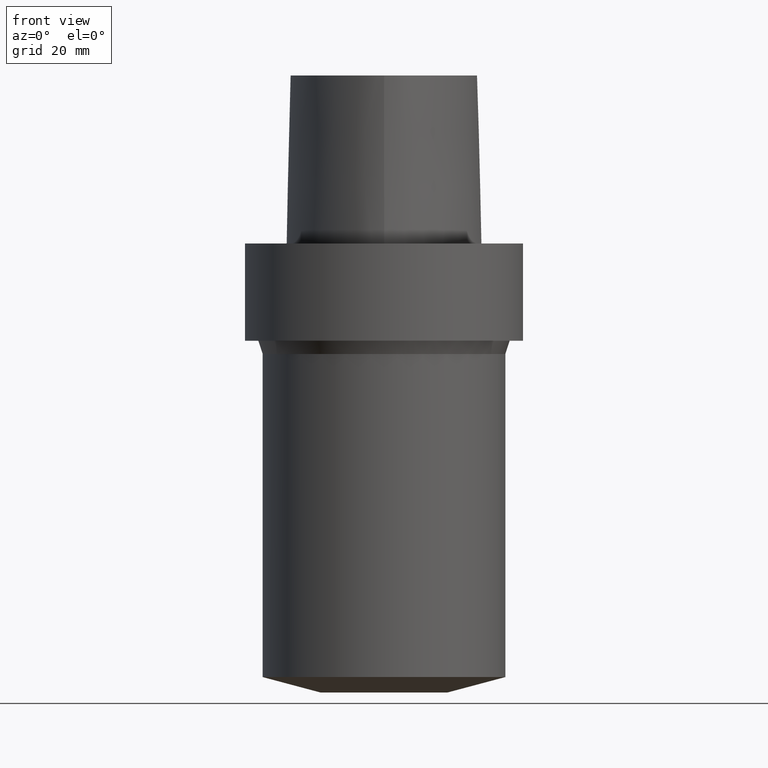
[diagram: clean part render]
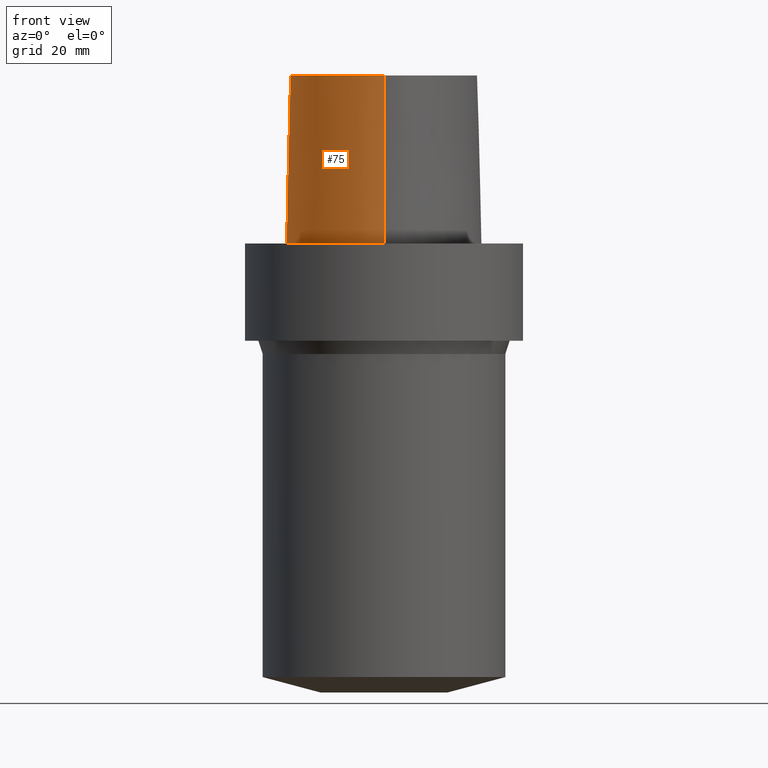
[diagram: same view with one face highlighted and labeled with its STEP entity id]
A machine part, front view. The second image highlights one B-rep face of the part: STEP entity #75.
In plain terms, the highlighted face is a freeform B-spline surface patch.
Its self-contained STEP definition (entity closure, byte-faithful):
#64=EDGE_CURVE('Unnamed[1]',#152,#153,#154,.T.);
#75=ADVANCED_FACE('Unnamed[1]',(#170),#171,.T.);
#91=EDGE_CURVE('Unnamed[1]',#156,#152,#192,.T.);
#97=EDGE_CURVE('Unnamed[1]',#156,#181,#200,.T.);
#105=EDGE_CURVE('Unnamed[1]',#153,#181,#211,.T.);
#152=VERTEX_POINT('',#256);
#153=VERTEX_POINT('',#257);
#154=LINE('',#258,#259);
#156=VERTEX_POINT('',#262);
#170=FACE_OUTER_BOUND('',#280,.T.);
#171=B_SPLINE_SURFACE_WITH_KNOTS('',3,3,((#281,#282,#283,#284),(#285,#286,#287,#288),(#289,#290,#291,#292),(#293,#294,#295,#296),(#297,#298,#299,#300),(#301,#302,#303,#304),(#305,#306,#307,#308),(#309,#310,#311,#312),(#313,#314,#315,#316),(#317,#318,#319,#320),(#321,#322,#323,#324),(#325,#326,#327,#328),(#329,#330,#331,#332),(#333,#334,#335,#336),(#337,#338,#339,#340),(#341,#342,#343,#344),(#345,#346,#347,#348),(#349,#350,#351,#352)),.UNSPECIFIED.,.F.,.F.,.F.,(4,1,1,1,1,1,1,1,1,2,1,1,1,1,4),(4,4),(-6.6151339308743,-6.20168806019465,-5.78824218951501,-5.37479631883537,-4.96135044815572,-4.13445870679644,-3.30756696543715,-2.89412109475751,-2.48067522407786,-2.06722935339822,-1.65378348271857,-1.24033761203893,-0.826891741359287,-0.413445870679644,0.0),(-3.8,0.0),.UNSPECIFIED.);
#181=VERTEX_POINT('',#364);
#192=B_SPLINE_CURVE_WITH_KNOTS('',3,(#394,#395,#396,#397,#398,#399,#400,#401,#402,#403,#404,#405,#406,#407,#408,#409),.UNSPECIFIED.,.F.,.F.,(4,1,1,1,1,1,1,1,1,1,1,1,1,4),(0.0,0.447924670568964,0.9388024242536,1.50591409090711,2.07314340012323,2.72424957442464,3.2253501842849,3.80982102049476,4.34867996267067,4.85900173381144,5.37972031856977,6.03459825488646,6.61113557741484,6.61513393087395),.UNSPECIFIED.);
#200=LINE('',#420,#421);
#211=B_SPLINE_CURVE_WITH_KNOTS('',3,(#435,#436,#437,#438,#439,#440,#441,#442,#443,#444,#445,#446,#447,#448,#449,#450,#451,#452),.UNSPECIFIED.,.F.,.F.,(4,1,1,1,1,1,1,1,1,2,1,1,1,1,4),(-6.6151339308743,-6.20168806019465,-5.78824218951501,-5.37479631883537,-4.96135044815572,-4.13445870679644,-3.30756696543715,-2.89412109475751,-2.48067522407786,-2.06722935339822,-1.65378348271857,-1.24033761203893,-0.826891741359287,-0.413445870679644,0.0),.UNSPECIFIED.);
#256=CARTESIAN_POINT('',(0.038736923393866,-22.5191997536361,38.0));
#257=CARTESIAN_POINT('',(0.04359356758149,-23.4691235068931,7.78075697532443E-032));
#258=CARTESIAN_POINT('',(0.038736923393866,-22.5191997536361,38.0));
#259=VECTOR('',#579,38.0118715498723);
#262=CARTESIAN_POINT('',(-0.001218547003662,19.7276821925089,38.0));
#280=EDGE_LOOP('',(#594,#595,#596,#597));
#281=CARTESIAN_POINT('',(0.038736923393866,-22.5191997536361,38.0));
#282=CARTESIAN_POINT('',(0.04035580478973,-22.8358410047159,25.3333333333066));
#283=CARTESIAN_POINT('',(0.041974686185626,-23.1524822558133,12.6666666666934));
#284=CARTESIAN_POINT('',(0.04359356758149,-23.4691235068931,7.78075697532443E-032));
#285=CARTESIAN_POINT('',(-1.33786123484754,-22.5261650259856,38.0));
#286=CARTESIAN_POINT('',(-1.38240731367927,-22.8430399310626,25.3333333333066));
#287=CARTESIAN_POINT('',(-1.42695339249092,-23.1599147815484,12.6666666666934));
#288=CARTESIAN_POINT('',(-1.4714994713963,-23.4767895315797,2.46519032881566E-032));
#289=CARTESIAN_POINT('',(-4.08909358431842,-21.9268839879558,38.0));
#290=CARTESIAN_POINT('',(-4.20580731135515,-22.2249725500078,25.3333333333066));
#291=CARTESIAN_POINT('',(-4.32252104640446,-22.5230611651922,12.6666666666934));
#292=CARTESIAN_POINT('',(-4.43923476371401,-22.821149804767,-4.93038065763132E-032));
#293=CARTESIAN_POINT('',(-7.8333083619947,-19.9973514861616,38.0));
#294=CARTESIAN_POINT('',(-8.00568301809614,-20.2649260859405,25.3333333333066));
#295=CARTESIAN_POINT('',(-8.1780576640789,-20.532500564315,12.6666666666934));
#296=CARTESIAN_POINT('',(-8.35043230079961,-20.8000751253325,-9.86076131526265E-032));
#297=CARTESIAN_POINT('',(-11.1035071147626,-17.450554957873,38.0));
#298=CARTESIAN_POINT('',(-11.3173048160562,-17.6855739222454,25.3333333333066));
#299=CARTESIAN_POINT('',(-11.5311025116181,-17.9205928617968,12.6666666666934));
#300=CARTESIAN_POINT('',(-11.744900222602,-18.1556117874078,-1.97215226305253E-031));
#301=CARTESIAN_POINT('',(-14.9379535189057,-13.461132049697,38.0));
#302=CARTESIAN_POINT('',(-15.191622410671,-13.6542981711372,25.3333333333066));
#303=CARTESIAN_POINT('',(-15.4452913389853,-13.8474645327131,12.6666666666934));
#304=CARTESIAN_POINT('',(-15.6989602501314,-14.0406306929147,-1.97215226305253E-031));
#305=CARTESIAN_POINT('',(-18.6681263017223,-7.59391757463204,38.0));
#306=CARTESIAN_POINT('',(-18.9571800800711,-7.73136168081928,25.3333333333066));
#307=CARTESIAN_POINT('',(-19.2462337287194,-7.86880572399774,12.6666666666934));
#308=CARTESIAN_POINT('',(-19.5352875070682,-8.00624990770787,1.97215226305253E-031));
#309=CARTESIAN_POINT('',(-20.7857899858339,-0.952862819790525,38.0));
#310=CARTESIAN_POINT('',(-21.0973808305434,-1.02218087467418,25.3333333333066));
#311=CARTESIAN_POINT('',(-21.408971677436,-1.09149899580772,12.6666666666934));
#312=CARTESIAN_POINT('',(-21.7205626190491,-1.16081708945282,0.0));
#313=CARTESIAN_POINT('',(-21.2911760556836,4.5469215763113,38.0));
#314=CARTESIAN_POINT('',(-21.610337904926,4.54783292082248,25.3333333333066));
#315=CARTESIAN_POINT('',(-21.9294998290918,4.54874426225691,12.6666666666934));
#316=CARTESIAN_POINT('',(-22.2486616783342,4.54965558738736,0.0));
#317=CARTESIAN_POINT('',(-20.7345309521958,8.74909381391006,38.0));
#318=CARTESIAN_POINT('',(-21.0445680426217,8.83349432450556,25.3333333333066));
#319=CARTESIAN_POINT('',(-21.3546050933631,8.91789488065068,12.6666666666934));
#320=CARTESIAN_POINT('',(-21.6646421256468,9.00229539124618,0.0));
#321=CARTESIAN_POINT('',(-19.5531512296439,11.3174844040833,38.0));
#322=CARTESIAN_POINT('',(-19.8336219699984,11.4710077674213,25.3333333333066));
#323=CARTESIAN_POINT('',(-20.1140927680763,11.6245311337623,12.6666666666934));
#324=CARTESIAN_POINT('',(-20.3945635471922,11.7780544971003,0.0));
#325=CARTESIAN_POINT('',(-17.9100913688793,13.524027510437,38.0));
#326=CARTESIAN_POINT('',(-18.1375785458768,13.7487051053655,25.3333333333066));
#327=CARTESIAN_POINT('',(-18.365065665211,13.9733826973296,12.6666666666934));
#328=CARTESIAN_POINT('',(-18.5925528034471,14.1980602922581,0.0));
#329=CARTESIAN_POINT('',(-15.7996349656398,15.3762170634413,38.0));
#330=CARTESIAN_POINT('',(-15.9739761051783,15.6434029846179,25.3333333333066));
#331=CARTESIAN_POINT('',(-16.1483172726872,15.9105889315134,12.6666666666934));
#332=CARTESIAN_POINT('',(-16.3226584122258,16.1777748720707,0.0));
#333=CARTESIAN_POINT('',(-12.1175640002064,17.3825162484012,38.0));
#334=CARTESIAN_POINT('',(-12.2475895903055,17.6724842099619,25.3333333333066));
#335=CARTESIAN_POINT('',(-12.3776152070492,17.9624521925696,12.6666666666934));
#336=CARTESIAN_POINT('',(-12.5076407874579,18.2524201541303,9.86076131526265E-032));
#337=CARTESIAN_POINT('',(-8.21761151654222,18.7588585989994,38.0));
#338=CARTESIAN_POINT('',(-8.30099497910627,19.0656105427881,25.3333333333066));
#339=CARTESIAN_POINT('',(-8.38437843913309,19.3723624535439,12.6666666666934));
#340=CARTESIAN_POINT('',(-8.46776192107786,19.679114377952,9.86076131526265E-032));
#341=CARTESIAN_POINT('',(-4.13466093881225,19.5396850837055,38.0));
#342=CARTESIAN_POINT('',(-4.16658562115465,19.8557172636973,25.3333333333066));
#343=CARTESIAN_POINT('',(-4.19851029939059,20.1717494367229,12.6666666666934));
#344=CARTESIAN_POINT('',(-4.23043497193604,20.487781597334,1.97215226305253E-031));
#345=CARTESIAN_POINT('',(-1.37917220403684,19.6638560588908,38.0));
#346=CARTESIAN_POINT('',(-1.39382511685176,19.98016223565,25.3333333333066));
#347=CARTESIAN_POINT('',(-1.40847802945569,20.296468399885,12.6666666666934));
#348=CARTESIAN_POINT('',(-1.42313094248379,20.6127745766442,1.10933564796705E-031));
#349=CARTESIAN_POINT('',(-0.001218547003662,19.7276821925089,38.0));
#350=CARTESIAN_POINT('',(-0.015869696232855,20.043988446791,25.3333333333066));
#351=CARTESIAN_POINT('',(-0.030520845462092,20.3602947010464,12.6666666666934));
#352=CARTESIAN_POINT('',(-0.045171994691285,20.6766009553285,1.6755590516169E-031));
#364=CARTESIAN_POINT('',(-0.045171994691285,20.6766009553285,1.6755590516169E-031));
#394=CARTESIAN_POINT('',(-0.001218547003662,19.7276821925089,38.0));
#395=CARTESIAN_POINT('',(-1.49408492138443,19.6585333605309,38.0));
#396=CARTESIAN_POINT('',(-4.62297391420352,19.513604770166,38.0));
#397=CARTESIAN_POINT('',(-9.56160616752212,18.4291575730197,38.0));
#398=CARTESIAN_POINT('',(-14.5427684976927,16.2697452580488,38.0));
#399=CARTESIAN_POINT('',(-19.4315563551602,12.5302108980807,38.0));
#400=CARTESIAN_POINT('',(-21.306358833612,6.76352894547076,38.0));
#401=CARTESIAN_POINT('',(-21.0724946936277,0.957075236984038,38.0));
#402=CARTESIAN_POINT('',(-19.7876470880144,-4.34628503581652,38.0));
#403=CARTESIAN_POINT('',(-17.5396999600095,-9.33314444653089,38.0));
#404=CARTESIAN_POINT('',(-14.645447733857,-13.7185760345629,38.0));
#405=CARTESIAN_POINT('',(-10.7996726536643,-17.856257282137,38.0));
#406=CARTESIAN_POINT('',(-6.00479510196376,-21.2687382067675,38.0));
#407=CARTESIAN_POINT('',(-1.90747171908525,-22.5250621415864,38.0));
#408=CARTESIAN_POINT('',(0.025424107066464,-22.5192678176378,38.0));
#409=CARTESIAN_POINT('',(0.038736923394311,-22.519199753636,38.0));
#420=CARTESIAN_POINT('',(-0.001218547003662,19.7276821925089,38.0));
#421=VECTOR('',#620,38.0118715498723);
#435=CARTESIAN_POINT('',(0.04359356758149,-23.4691235068931,7.78075697532443E-032));
#436=CARTESIAN_POINT('',(-1.4714994713963,-23.4767895315797,2.46519032881566E-032));
#437=CARTESIAN_POINT('',(-4.43923476371401,-22.821149804767,-4.93038065763132E-032));
#438=CARTESIAN_POINT('',(-8.35043230079961,-20.8000751253325,-9.86076131526265E-032));
#439=CARTESIAN_POINT('',(-11.744900222602,-18.1556117874078,-1.97215226305253E-031));
#440=CARTESIAN_POINT('',(-15.6989602501314,-14.0406306929147,-1.97215226305253E-031));
#441=CARTESIAN_POINT('',(-19.5352875070682,-8.00624990770787,1.97215226305253E-031));
#442=CARTESIAN_POINT('',(-21.7205626190491,-1.16081708945282,0.0));
#443=CARTESIAN_POINT('',(-22.2486616783342,4.54965558738736,0.0));
#444=CARTESIAN_POINT('',(-21.6646421256468,9.00229539124618,0.0));
#445=CARTESIAN_POINT('',(-20.3945635471922,11.7780544971003,0.0));
#446=CARTESIAN_POINT('',(-18.5925528034471,14.1980602922581,0.0));
#447=CARTESIAN_POINT('',(-16.3226584122258,16.1777748720707,0.0));
#448=CARTESIAN_POINT('',(-12.5076407874579,18.2524201541303,9.86076131526265E-032));
#449=CARTESIAN_POINT('',(-8.46776192107786,19.679114377952,9.86076131526265E-032));
#450=CARTESIAN_POINT('',(-4.23043497193604,20.487781597334,1.97215226305253E-031));
#451=CARTESIAN_POINT('',(-1.42313094248379,20.6127745766442,1.10933564796705E-031));
#452=CARTESIAN_POINT('',(-0.045171994691285,20.6766009553285,1.6755590516169E-031));
#579=DIRECTION('',(0.000127766510556,-0.024990186342461,-0.999687688361864));
#594=ORIENTED_EDGE('',*,*,#105,.F.);
#595=ORIENTED_EDGE('',*,*,#64,.F.);
#596=ORIENTED_EDGE('',*,*,#91,.F.);
#597=ORIENTED_EDGE('',*,*,#97,.T.);
#620=DIRECTION('',(-0.001156308434589,0.02496374748543,-0.999687688361864));